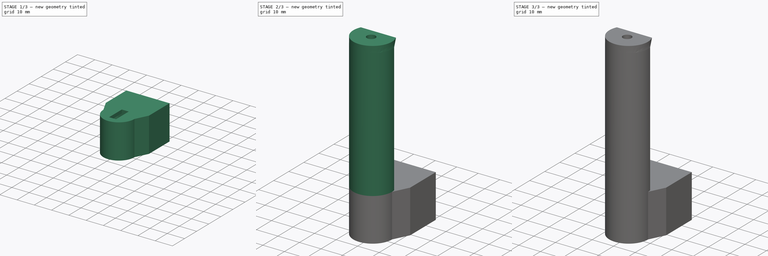
[diagram: build sequence overview — one tinted view per stage of 3, left to right]
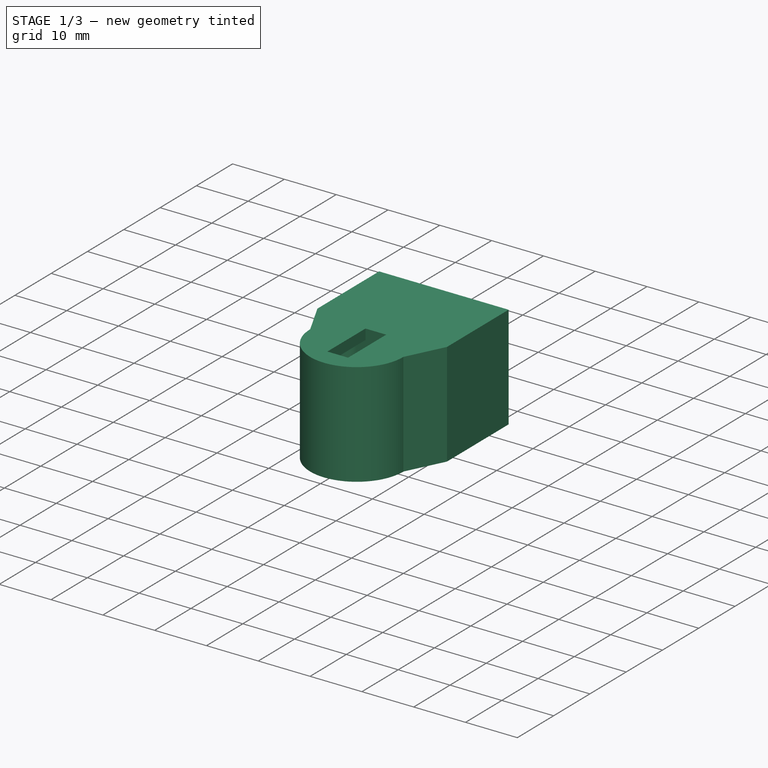
[diagram: stage 1 of 3 — iso view after this stage's code; geometry added in this stage tinted green]
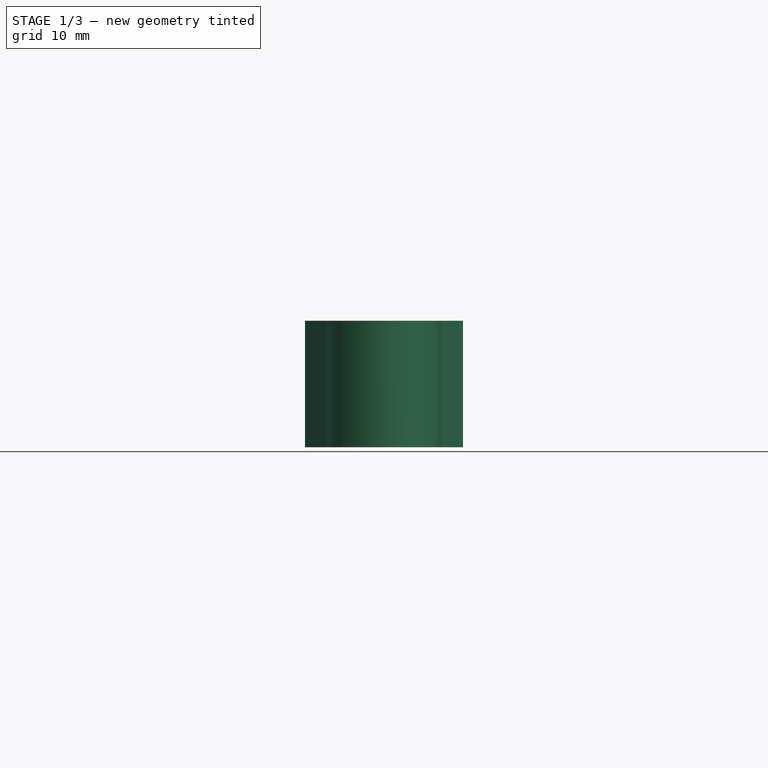
[diagram: stage 1 of 3 — front view after this stage's code; geometry added in this stage tinted green]
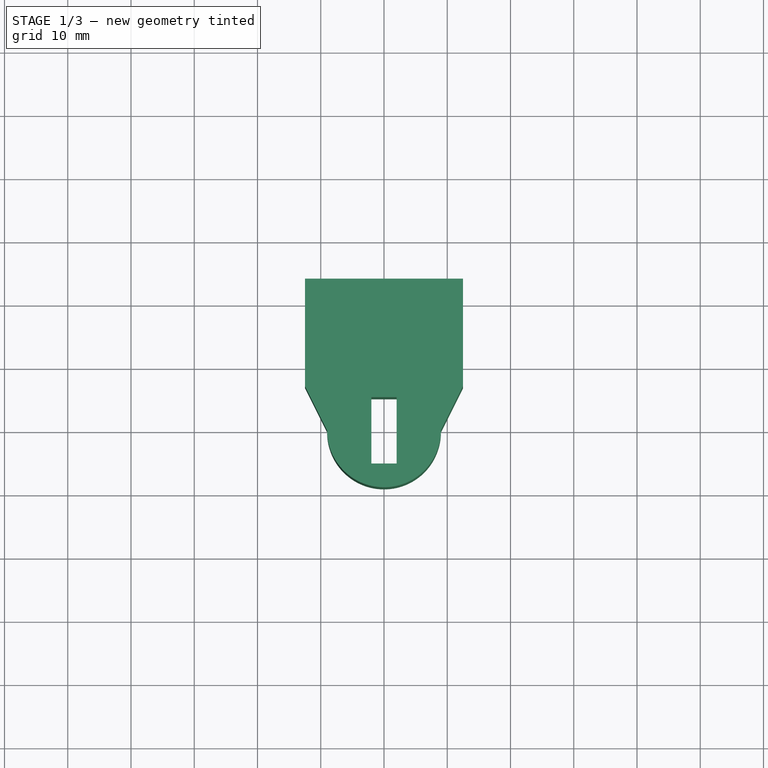
[diagram: stage 1 of 3 — top view after this stage's code; geometry added in this stage tinted green]
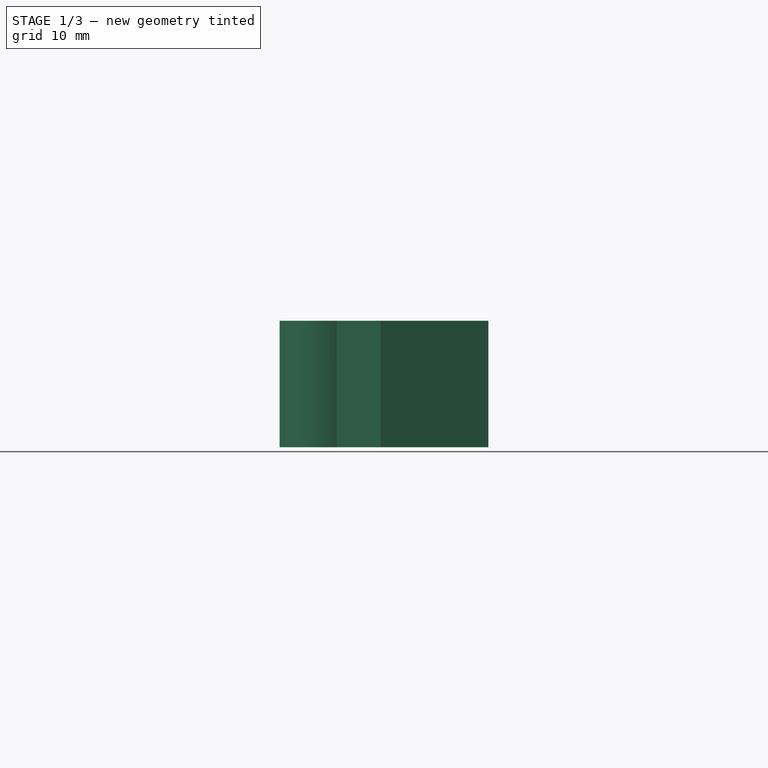
[diagram: stage 1 of 3 — right view after this stage's code; geometry added in this stage tinted green]
FCSTD DOCUMENT  (FreeCAD 0.18.4R)
Label: screwdrivern20
License: All rights reserved
LicenseURL: http://en.wikipedia.org/wiki/All_rights_reserved
objects: Sketcher::SketchObject×8, PartDesign::Pad×3, PartDesign::Pocket×3, PartDesign::AdditiveLoft×1, PartDesign::Body×1
note: 23 computed .brp shape members not serialized (recipe doc carries the construction recipe); baked Part::Feature solids carry a one-line shape summary decoded from their .brp

FEATURE [Sketcher::SketchObject] Sketch
  MapMode = 5
  Support = -> [XY_Plane]
  sketch-geometry (14):
    g0: LineSegment StartX=-3.75 StartY=5.25 StartZ=0 EndX=3.75 EndY=5.25 EndZ=0
    g1: LineSegment StartX=6.25 StartY=2.75 StartZ=0 EndX=6.25 EndY=-2.75 EndZ=0
    g2: LineSegment StartX=3.75 StartY=-5.25 StartZ=0 EndX=-3.75 EndY=-5.25 EndZ=0
    g3: LineSegment StartX=-6.25 StartY=-2.75 StartZ=0 EndX=-6.25 EndY=2.75 EndZ=0
    g4: ArcOfCircle CenterX=3.75 CenterY=2.75 CenterZ=0 NormalX=0 NormalY=0 NormalZ=1 AngleXU=0 Radius=2.5 StartAngle=0 EndAngle=1.5708
    g5: ArcOfCircle CenterX=3.75 CenterY=-2.75 CenterZ=0 NormalX=0 NormalY=0 NormalZ=1 AngleXU=0 Radius=2.5 StartAngle=4.71239 EndAngle=6.28319
    g6: ArcOfCircle CenterX=-3.75 CenterY=-2.75 CenterZ=0 NormalX=0 NormalY=0 NormalZ=1 AngleXU=0 Radius=2.5 StartAngle=3.14159 EndAngle=4.71239
    g7: ArcOfCircle CenterX=-3.75 CenterY=2.75 CenterZ=0 NormalX=0 NormalY=0 NormalZ=1 AngleXU=0 Radius=2.5 StartAngle=1.5708 EndAngle=3.14159
    g8: ArcOfCircle CenterX=0 CenterY=0 CenterZ=0 NormalX=0 NormalY=0 NormalZ=1 AngleXU=0 Radius=9 StartAngle=3.14159 EndAngle=6.28319
    g9: LineSegment StartX=-9 StartY=1.1e-15 StartZ=0 EndX=-12.5 EndY=7 EndZ=0
    g10: LineSegment StartX=9 StartY=-2.2e-15 StartZ=0 EndX=12.5 EndY=7 EndZ=0
    g11: LineSegment StartX=12.5 StartY=7 StartZ=0 EndX=12.5 EndY=24 EndZ=0
    g12: LineSegment StartX=12.5 StartY=24 StartZ=0 EndX=-12.5 EndY=24 EndZ=0
    g13: LineSegment StartX=-12.5 StartY=24 StartZ=0 EndX=-12.5 EndY=7 EndZ=0
  constraints (35):
    c: Horizontal(g2)
    c: Vertical(g3)
    c: Tangent(g0,g4) = 1.5708
    c: Tangent(g1,g4) = 1.5708
    c: Tangent(g1,g5) = 1.5708
    c: Tangent(g2,g5) = 1.5708
    c: Tangent(g2,g6) = 1.5708
    c: Tangent(g3,g6) = 1.5708
    c: Tangent(g0,g7) = 1.5708
    c: Tangent(g3,g7) = 1.5708
    c: Horizontal(g0)
    c: Vertical(g1)
    c: Symmetric(g7,g4,g-2)
    c: Symmetric(g4,g5,g-1)
    c: DistanceX(g3,g1) = 12.5
    c: DistanceY(g2,g0) = 10.5
    c: Equal(g6,g7)
    c: Diameter(g6) = 5
    c: Coincident(g8,g-1)
    c: PointOnObject(g8,g-1)
    c: PointOnObject(g8,g-1)
    c: Diameter(g8) = 18
    c: Coincident(g9,g8)
    c: Coincident(g10,g8)
    c: Coincident(g11,g10)
    c: Vertical(g11)
    c: Coincident(g12,g11)
    c: Horizontal(g12)
    c: Coincident(g13,g12)
    c: Coincident(g13,g9)
    c: Vertical(g13)
    c: Symmetric(g9,g10,g-2)
    c: DistanceX(g12,g12) = 25
    c: DistanceY(g8,g9) = 7
    c: DistanceY(g13,g13) = 17
FEATURE [PartDesign::Pad] Pad  label="motorholder"
  Length = 20
  Length2 = 100
  Profile = -> Sketch
  Reversed = true
  Type = 0
FEATURE [Sketcher::SketchObject] Sketch001
  AttachmentOffset = pos=(0,0,0) rot=(0,0,1;1.5708rad)
  MapMode = 5
  Placement = pos=(0,0,0) rot=(0,0,1;1.5708rad)
  Support = -> [XY_Plane]
  sketch-geometry (5):
    g0: Circle CenterX=0 CenterY=0 CenterZ=0 NormalX=0 NormalY=0 NormalZ=1 AngleXU=0 Radius=9
    g1: LineSegment StartX=-6.25 StartY=2 StartZ=0 EndX=6.25 EndY=2 EndZ=0
    g2: LineSegment StartX=6.25 StartY=2 StartZ=0 EndX=6.25 EndY=-2 EndZ=0
    g3: LineSegment StartX=6.25 StartY=-2 StartZ=0 EndX=-6.25 EndY=-2 EndZ=0
    g4: LineSegment StartX=-6.25 StartY=-2 StartZ=0 EndX=-6.25 EndY=2 EndZ=0
  constraints (12):
    c: Coincident(g0,g-1)
    c: Diameter(g0) = 18
    c: Coincident(g1,g2)
    c: Coincident(g2,g3)
    c: Coincident(g3,g4)
    c: Coincident(g4,g1)
    c: Horizontal(g3)
    c: Vertical(g2)
    c: Symmetric(g1,g1,g-2)
    c: DistanceX(g1,g1) = 12.5
    c: Symmetric(g3,g1,g-1)
    c: DistanceY(g4,g4) = 4
FEATURE [PartDesign::Pad] Pad001  label="tengah"
  BaseFeature = -> Pad
  Length = 2
  Length2 = 100
  Profile = -> Sketch001
  Reversed = true
  Type = 0
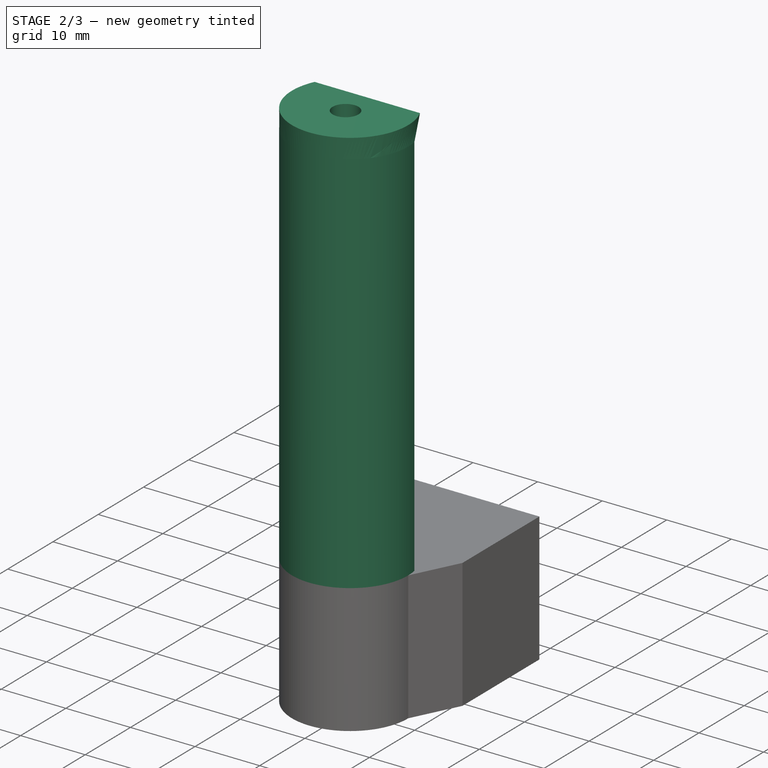
[diagram: stage 2 of 3 — iso view after this stage's code; geometry added in this stage tinted green]
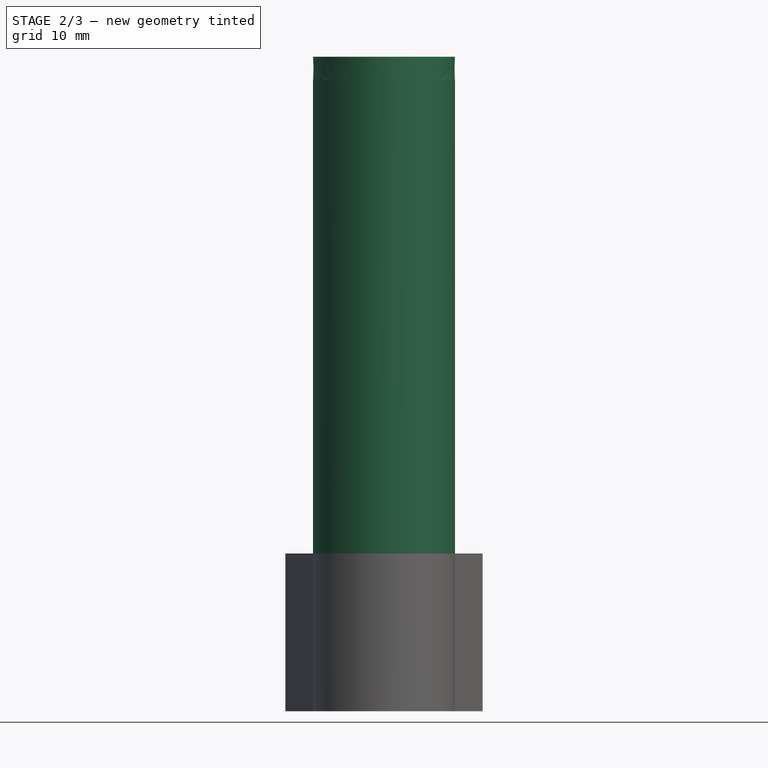
[diagram: stage 2 of 3 — front view after this stage's code; geometry added in this stage tinted green]
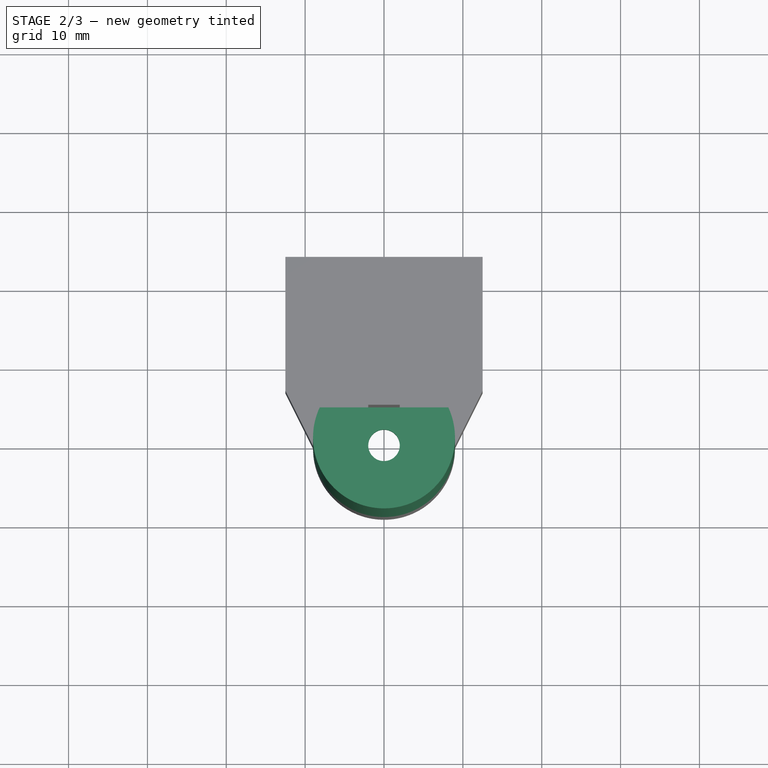
[diagram: stage 2 of 3 — top view after this stage's code; geometry added in this stage tinted green]
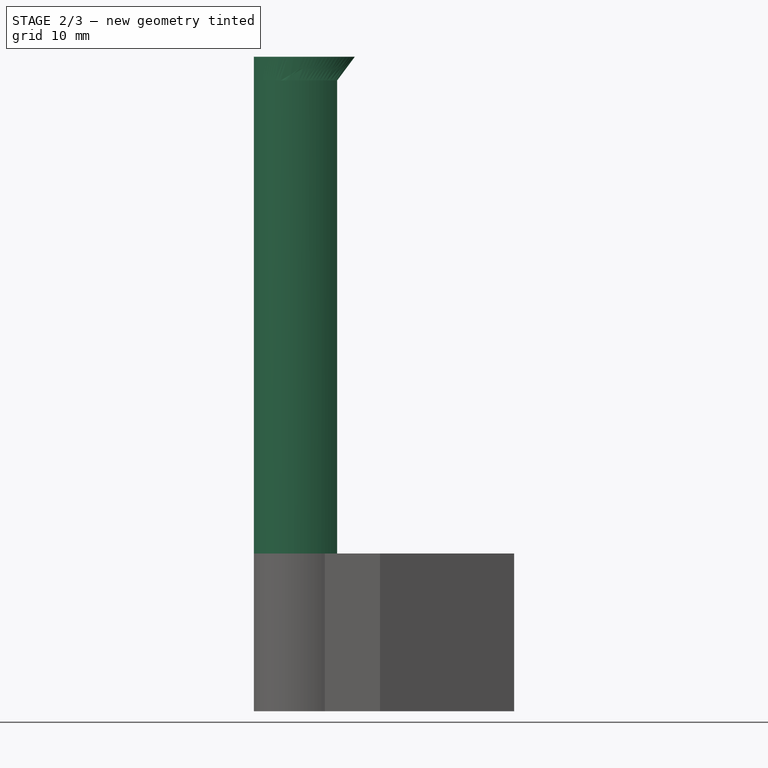
[diagram: stage 2 of 3 — right view after this stage's code; geometry added in this stage tinted green]
FEATURE [Sketcher::SketchObject] Sketch002
  MapMode = 5
  Support = -> [XY_Plane]
  sketch-geometry (4):
    g0: ArcOfCircle CenterX=0 CenterY=0 CenterZ=0 NormalX=0 NormalY=0 NormalZ=1 AngleXU=0 Radius=9 StartAngle=2.96706 EndAngle=6.45772
    g1: ArcOfCircle CenterX=0 CenterY=0 CenterZ=0 NormalX=0 NormalY=0 NormalZ=1 AngleXU=0 Radius=7.5 StartAngle=2.96706 EndAngle=6.45772
    g2: LineSegment StartX=-8.86327 StartY=1.56283 StartZ=0 EndX=-7.38606 EndY=1.30236 EndZ=0
    g3: LineSegment StartX=7.38606 StartY=1.30236 StartZ=0 EndX=8.86327 EndY=1.56283 EndZ=0
  constraints (12):
    c: Coincident(g0,g-1)
    c: Diameter(g0) = 18
    c: Coincident(g1,g0)
    c: Diameter(g1) = 15
    c: Angle(g1) = 3.49066
    c: Angle(g0) = 3.49066
    c: Coincident(g2,g0)
    c: Coincident(g2,g1)
    c: Coincident(g3,g1)
    c: Coincident(g3,g0)
    c: Horizontal(g1,g1)
    c: Horizontal(g0,g0)
FEATURE [PartDesign::Pad] Pad002
  BaseFeature = -> Pad001
  Length = 60
  Length2 = 100
  Profile = -> Sketch002
  Type = 0
FEATURE [Sketcher::SketchObject] Sketch003
  AttachmentOffset = pos=(0,0,60) rot=(0,0,1;0rad)
  MapMode = 5
  Placement = pos=(0,0,60) rot=(0,0,1;0rad)
  Support = -> [XY_Plane]
  sketch-geometry (2):
    g0: ArcOfCircle CenterX=0 CenterY=0 CenterZ=0 NormalX=0 NormalY=0 NormalZ=1 AngleXU=0 Radius=9 StartAngle=2.96706 EndAngle=6.45772
    g1: LineSegment StartX=-8.86327 StartY=1.56283 StartZ=0 EndX=8.86327 EndY=1.56283 EndZ=0
  constraints (6):
    c: Coincident(g0,g-1)
    c: Coincident(g1,g0)
    c: Coincident(g1,g0)
    c: Horizontal(g1)
    c: Diameter(g0) = 18
    c: Angle(g0) = 3.49066
FEATURE [Sketcher::SketchObject] Sketch004
  AttachmentOffset = pos=(0,0,63) rot=(0,0,1;0rad)
  MapMode = 5
  Placement = pos=(0,0,63) rot=(0,0,1;0rad)
  Support = -> [XY_Plane]
  sketch-geometry (2):
    g0: ArcOfCircle CenterX=0 CenterY=0 CenterZ=0 NormalX=0 NormalY=0 NormalZ=1 AngleXU=0 Radius=9 StartAngle=2.70526 EndAngle=6.71952
    g1: LineSegment StartX=-8.15677 StartY=3.80356 StartZ=0 EndX=8.15677 EndY=3.80356 EndZ=0
  constraints (6):
    c: Coincident(g0,g-1)
    c: Diameter(g0) = 18
    c: Coincident(g1,g0)
    c: Coincident(g1,g0)
    c: Horizontal(g1)
    c: Angle(g0) = 4.01426
FEATURE [PartDesign::AdditiveLoft] AdditiveLoft
  BaseFeature = -> Pad002
  Closed = false
  Profile = -> Sketch003
  Ruled = false
  Sections = -> [Sketch004]
FEATURE [Sketcher::SketchObject] Sketch005
  AttachmentOffset = pos=(0,0,62) rot=(0,0,1;0rad)
  MapMode = 5
  Placement = pos=(0,0,62) rot=(0,0,1;0rad)
  Support = -> [XY_Plane]
  sketch-geometry (1):
    g0: Circle CenterX=0 CenterY=-1 CenterZ=0 NormalX=0 NormalY=0 NormalZ=1 AngleXU=0 Radius=2
  constraints (3):
    c: Diameter(g0) = 4
    c: DistanceY(g0,g-1) = 1
    c: PointOnObject(g0,g-2)
FEATURE [PartDesign::Pocket] Pocket
  BaseFeature = -> AdditiveLoft
  Length = 10
  Length2 = 100
  Midplane = true
  Profile = -> Sketch005
  Type = 0
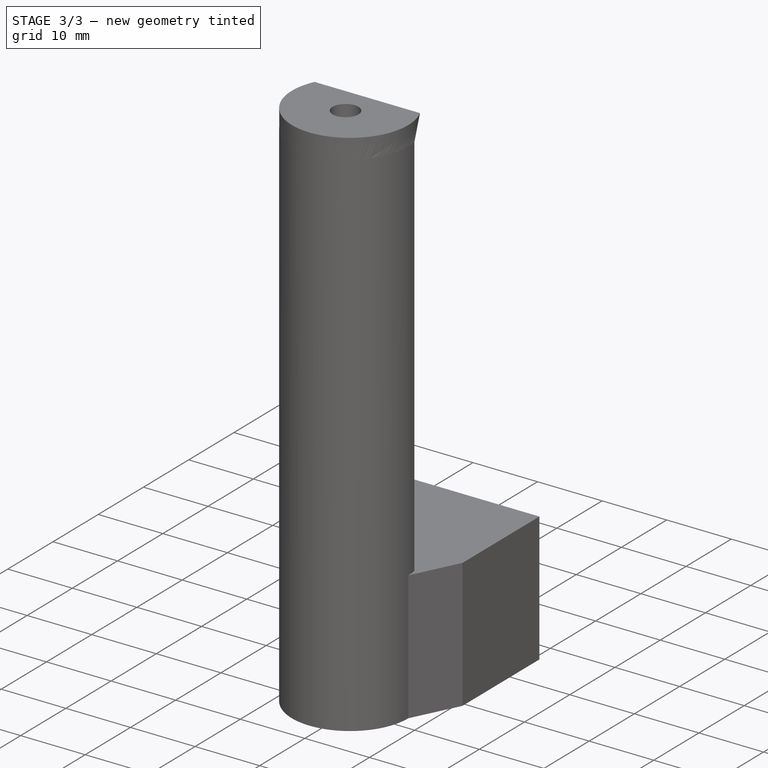
[diagram: stage 3 of 3 — iso view after this stage's code; geometry added in this stage tinted green]
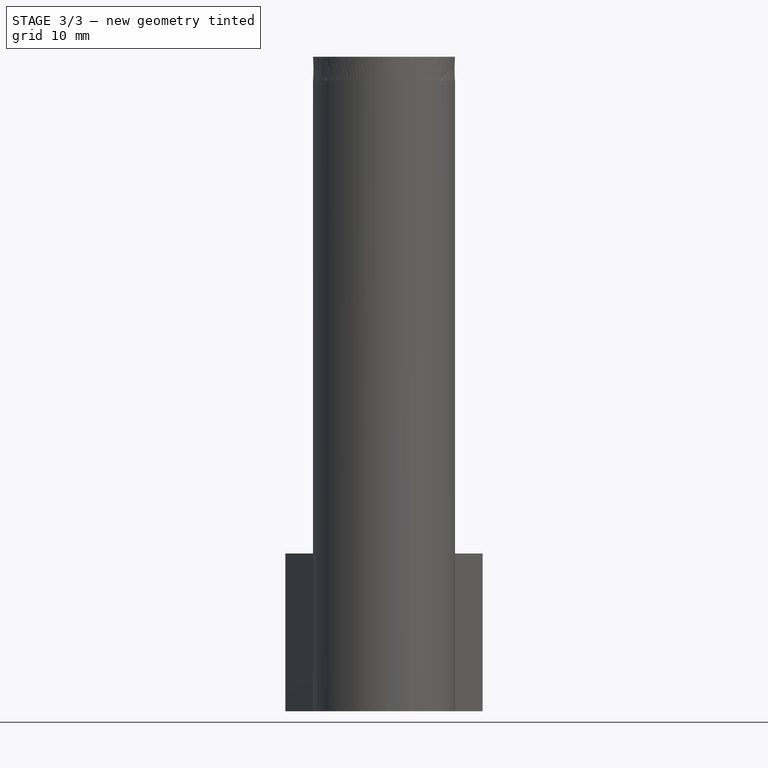
[diagram: stage 3 of 3 — front view after this stage's code; geometry added in this stage tinted green]
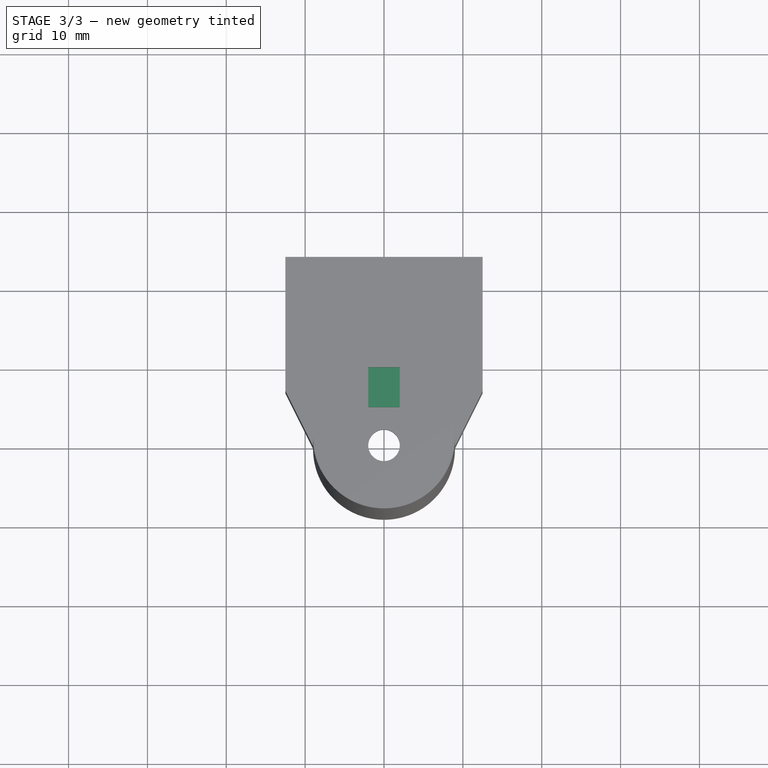
[diagram: stage 3 of 3 — top view after this stage's code; geometry added in this stage tinted green]
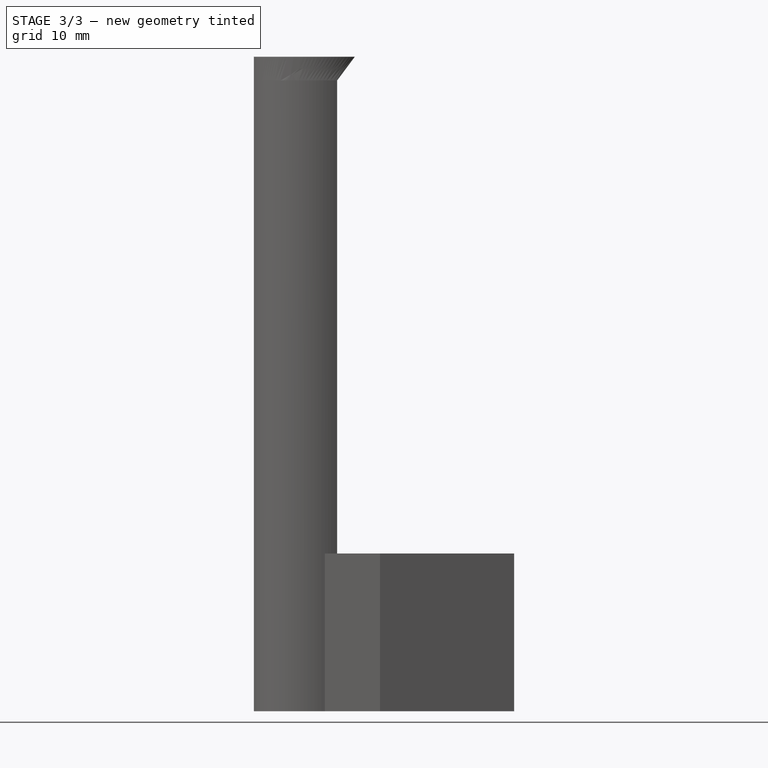
[diagram: stage 3 of 3 — right view after this stage's code; geometry added in this stage tinted green]
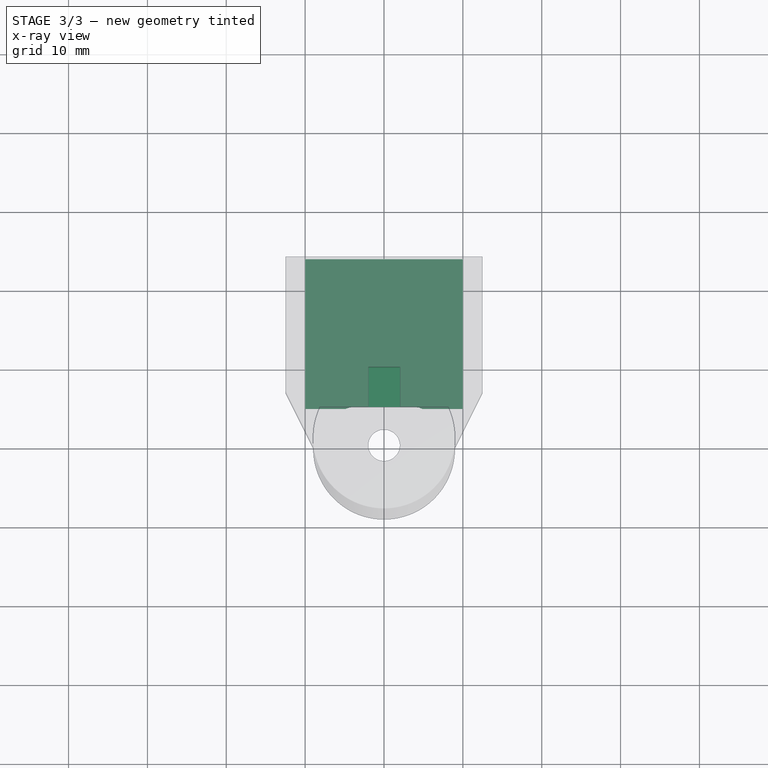
[diagram: stage 3 of 3 — x-ray composite at the top view; earlier geometry ghosted, this stage's added geometry solid]
FEATURE [Sketcher::SketchObject] Sketch006
  AttachmentOffset = pos=(0,0,-7) rot=(0,0,1;0rad)
  MapMode = 5
  Placement = pos=(0,7,-1.6e-15) rot=(1,0,0;1.5708rad)
  Support = -> [XZ_Plane]
  sketch-geometry (4):
    g0: LineSegment StartX=-10 StartY=-2.5 StartZ=0 EndX=10 EndY=-2.5 EndZ=0
    g1: LineSegment StartX=10 StartY=-2.5 StartZ=0 EndX=10 EndY=-17.5 EndZ=0
    g2: LineSegment StartX=10 StartY=-17.5 StartZ=0 EndX=-10 EndY=-17.5 EndZ=0
    g3: LineSegment StartX=-10 StartY=-17.5 StartZ=0 EndX=-10 EndY=-2.5 EndZ=0
  constraints (11):
    c: Coincident(g0,g1)
    c: Coincident(g1,g2)
    c: Coincident(g2,g3)
    c: Coincident(g3,g0)
    c: Horizontal(g2)
    c: Vertical(g1)
    c: Vertical(g3)
    c: DistanceX(g0,g0) = 20
    c: DistanceY(g3,g3) = 15
    c: Symmetric(g0,g0,g-2)
    c: DistanceY(g0) = -2.5
FEATURE [PartDesign::Pocket] Pocket001
  BaseFeature = -> Pocket
  Length = 20
  Length2 = 2
  Profile = -> Sketch006
  Type = 4
FEATURE [Sketcher::SketchObject] Sketch007
  MapMode = 5
  Support = -> [Pocket001]
  sketch-geometry (4):
    g0: LineSegment StartX=-2 StartY=0 StartZ=0 EndX=2 EndY=0 EndZ=0
    g1: LineSegment StartX=2 StartY=0 StartZ=0 EndX=2 EndY=10 EndZ=0
    g2: LineSegment StartX=2 StartY=10 StartZ=0 EndX=-2 EndY=10 EndZ=0
    g3: LineSegment StartX=-2 StartY=10 StartZ=0 EndX=-2 EndY=0 EndZ=0
  constraints (11):
    c: Coincident(g0,g1)
    c: Coincident(g1,g2)
    c: Coincident(g2,g3)
    c: Coincident(g3,g0)
    c: Horizontal(g0)
    c: Vertical(g1)
    c: Vertical(g3)
    c: PointOnObject(g0,g-1)
    c: Symmetric(g1,g2,g-2)
    c: DistanceX(g2,g2) = 4
    c: DistanceY(g1,g1) = 10
FEATURE [PartDesign::Pocket] Pocket002
  BaseFeature = -> Pocket001
  Length = 5
  Length2 = 100
  Profile = -> Sketch007
  Type = 0
FEATURE [PartDesign::Body] Body
  Group = -> [Sketch,Pad,Sketch001,Pad001,Sketch002,Pad002,Sketch003,Sketch004,AdditiveLoft,Sketch005,Pocket,Sketch006,Pocket001,Sketch007,Pocket002]
  Origin = -> Origin
  Tip = -> Pocket002
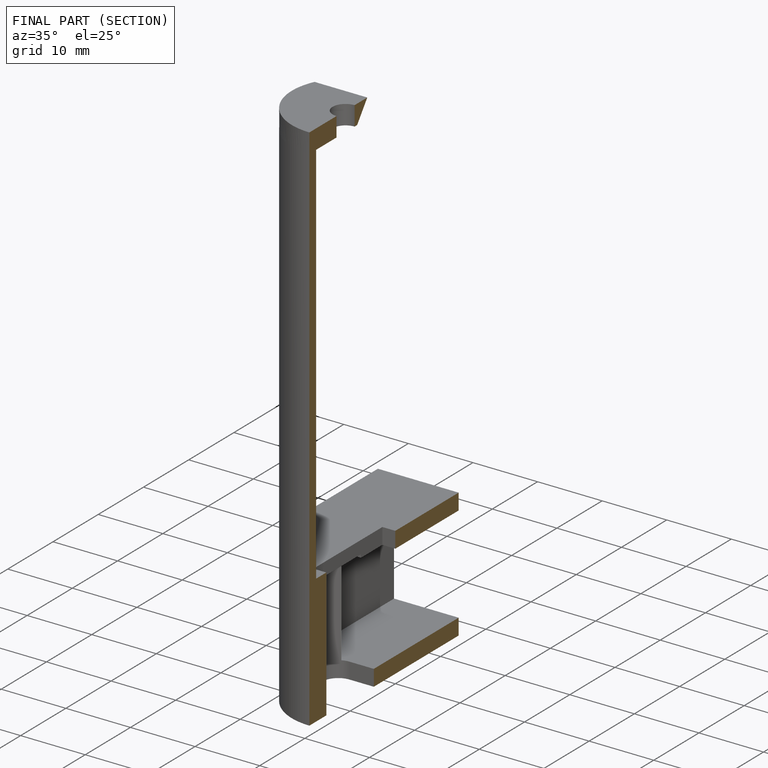
[diagram: finished part — half-section view (interior)]
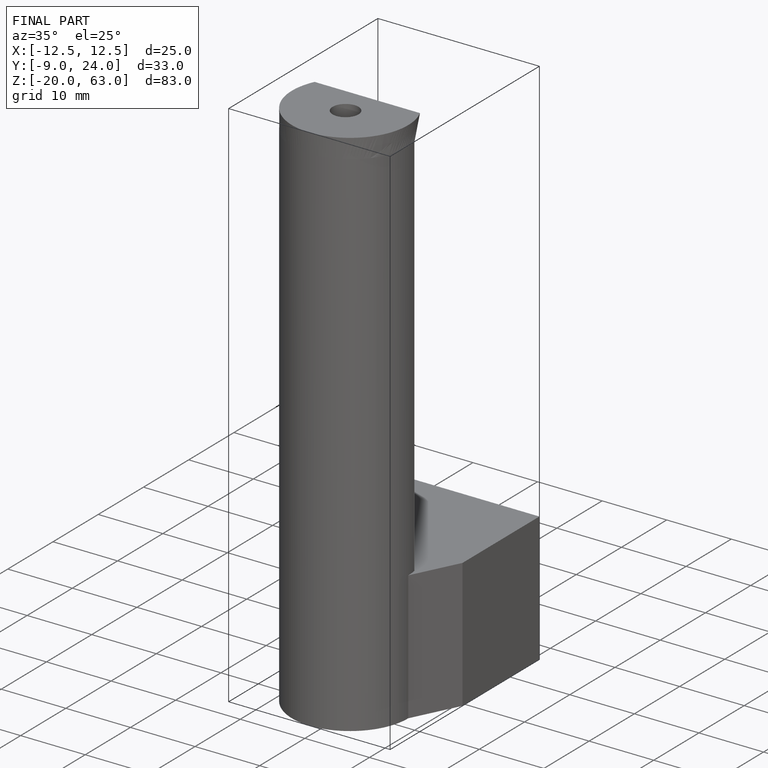
[diagram: finished part — iso view with bounding-box wireframe]
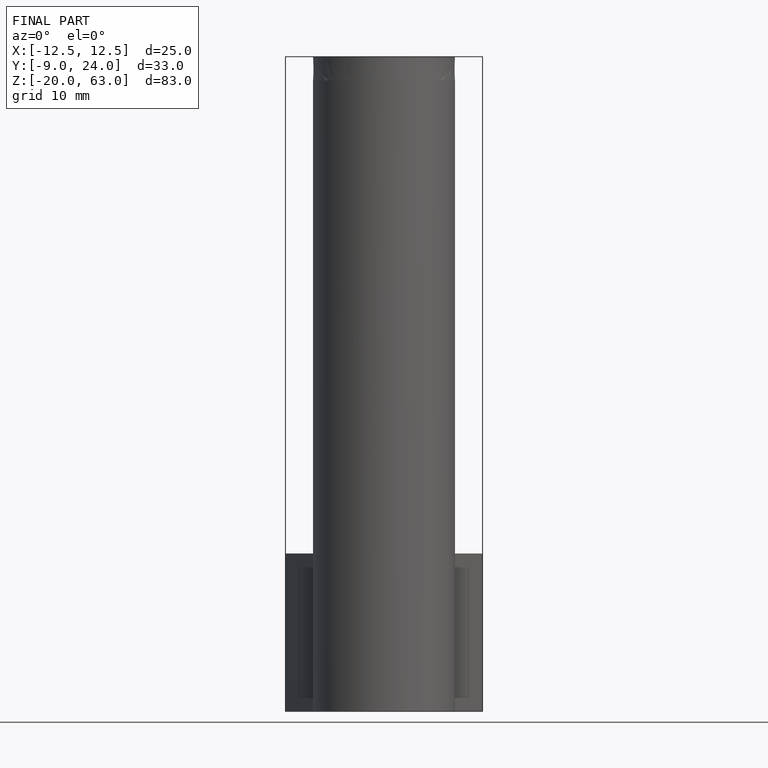
[diagram: finished part — front view with bounding-box wireframe]
